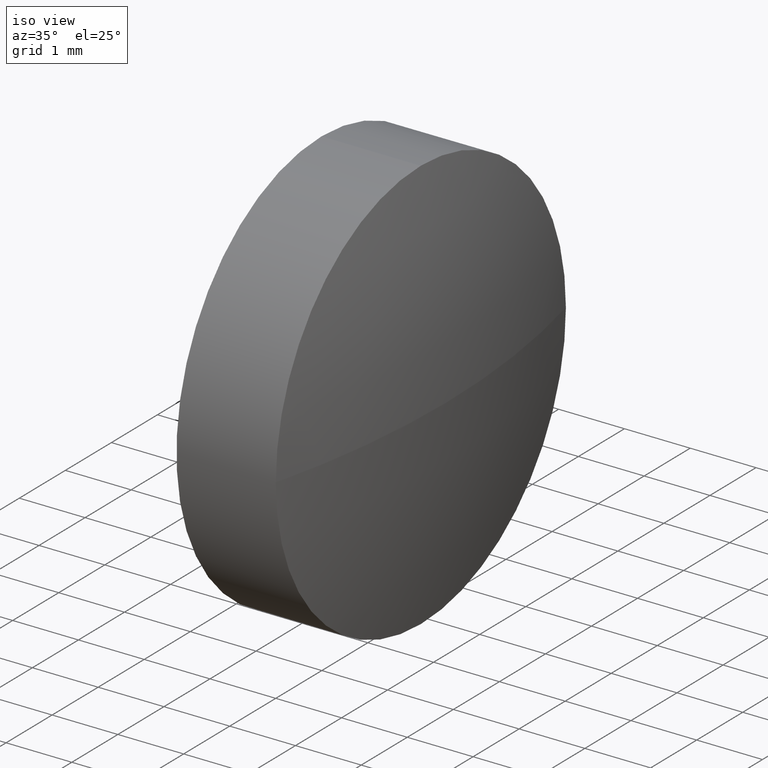
[diagram: clean part render]
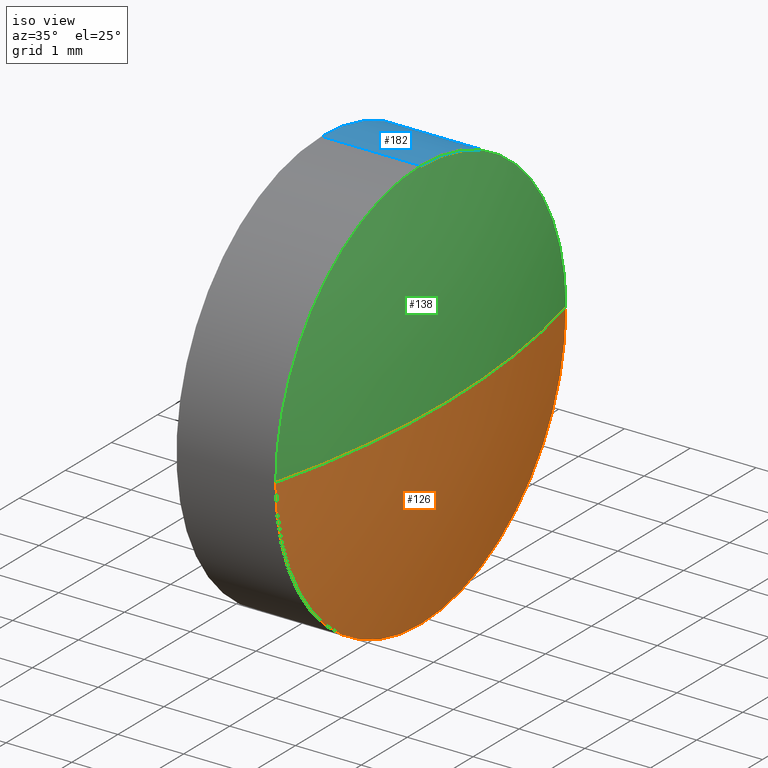
[diagram: same view with three faces highlighted in distinct colors, each labeled with its STEP entity id]
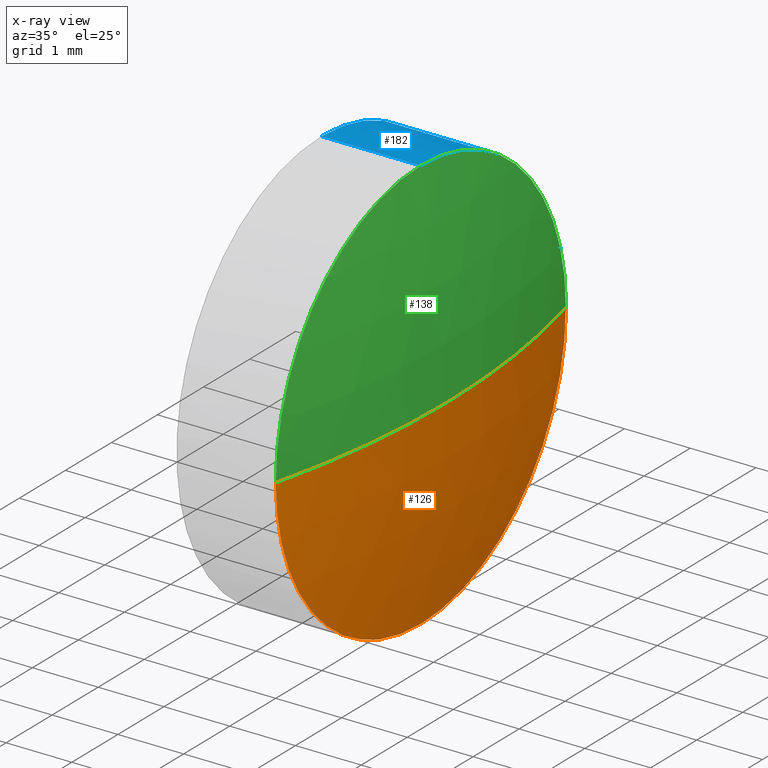
[diagram: x-ray of the same camera — body ghosted, the three highlighted faces saturated]
A machine part, iso view with three faces highlighted in distinct colors.
The next image is the same camera in x-ray (body ghosted, the three faces saturated) — at least one of them is partly hidden behind the body in this view.
Their STEP definitions:

[orange] entity #126 — the highlighted spherical surface has radius 12.9162 mm.
#1 = DIRECTION ( 'NONE',  ( -0.0000000000000000000, 0.0000000000000000000, 1.000000000000000000 ) ) ;
#4 = VERTEX_POINT ( 'NONE', #153 ) ;
#12 = AXIS2_PLACEMENT_3D ( 'NONE', #45, #122, #75 ) ;
#16 = CARTESIAN_POINT ( 'NONE',  ( 449.3945367775709200, 67.58735190658296700, 0.0000000000000000000 ) ) ;
#27 = DIRECTION ( 'NONE',  ( 0.0000000000000000000, 0.0000000000000000000, 1.000000000000000000 ) ) ;
#36 = CIRCLE ( 'NONE', #63, 3.150000000000013700 ) ;
#38 = ORIENTED_EDGE ( 'NONE', *, *, #47, .F. ) ;
#41 = DIRECTION ( 'NONE',  ( 1.000000000000000000, 0.0000000000000000000, 0.0000000000000000000 ) ) ;
#44 = DIRECTION ( 'NONE',  ( 0.0000000000000000000, 1.000000000000000000, 1.224646799147353700E-016 ) ) ;
#45 = CARTESIAN_POINT ( 'NONE',  ( 436.8683829314171000, 67.58735190658293800, 0.0000000000000000000 ) ) ;
#47 = EDGE_CURVE ( 'NONE', #113, #102, #68, .T. ) ;
#55 = VERTEX_POINT ( 'NONE', #143 ) ;
#63 = AXIS2_PLACEMENT_3D ( 'NONE', #16, #88, #27 ) ;
#68 = CIRCLE ( 'NONE', #127, 12.91615384615379900 ) ;
#75 = DIRECTION ( 'NONE',  ( 0.0000000000000000000, 1.000000000000000000, 0.0000000000000000000 ) ) ;
#76 = EDGE_CURVE ( 'NONE', #102, #55, #36, .T. ) ;
#82 = AXIS2_PLACEMENT_3D ( 'NONE', #110, #176, #44 ) ;
#88 = DIRECTION ( 'NONE',  ( -1.000000000000000000, -0.0000000000000000000, -0.0000000000000000000 ) ) ;
#89 = CARTESIAN_POINT ( 'NONE',  ( 449.3945367775709200, 70.73735190658295800, 0.0000000000000000000 ) ) ;
#100 = SPHERICAL_SURFACE ( 'NONE', #12, 12.91615384615380400 ) ;
#102 = VERTEX_POINT ( 'NONE', #89 ) ;
#104 = ORIENTED_EDGE ( 'NONE', *, *, #109, .F. ) ;
#109 = EDGE_CURVE ( 'NONE', #55, #4, #144, .T. ) ;
#110 = CARTESIAN_POINT ( 'NONE',  ( 436.8683829314171000, 67.58735190658293800, 0.0000000000000000000 ) ) ;
#113 = VERTEX_POINT ( 'NONE', #173 ) ;
#118 = ORIENTED_EDGE ( 'NONE', *, *, #76, .F. ) ;
#121 = DIRECTION ( 'NONE',  ( 0.0000000000000000000, 0.0000000000000000000, 1.000000000000000000 ) ) ;
#122 = DIRECTION ( 'NONE',  ( -0.0000000000000000000, 0.0000000000000000000, -1.000000000000000000 ) ) ;
#126 = ADVANCED_FACE ( 'NONE', ( #140 ), #100, .T. ) ;
#127 = AXIS2_PLACEMENT_3D ( 'NONE', #170, #1, #41 ) ;
#129 = EDGE_CURVE ( 'NONE', #113, #4, #178, .T. ) ;
#140 = FACE_OUTER_BOUND ( 'NONE', #167, .T. ) ;
#141 = AXIS2_PLACEMENT_3D ( 'NONE', #161, #164, #121 ) ;
#143 = CARTESIAN_POINT ( 'NONE',  ( 449.3945367775709200, 67.58735190658296700, -3.150000000000013700 ) ) ;
#144 = CIRCLE ( 'NONE', #141, 3.150000000000013700 ) ;
#151 = ORIENTED_EDGE ( 'NONE', *, *, #129, .T. ) ;
#153 = CARTESIAN_POINT ( 'NONE',  ( 449.3945367775709200, 64.43735190658293300, -3.857637417314168100E-016 ) ) ;
#161 = CARTESIAN_POINT ( 'NONE',  ( 449.3945367775709200, 67.58735190658296700, 0.0000000000000000000 ) ) ;
#164 = DIRECTION ( 'NONE',  ( -1.000000000000000000, -0.0000000000000000000, -0.0000000000000000000 ) ) ;
#167 = EDGE_LOOP ( 'NONE', ( #38, #151, #104, #118 ) ) ;
#170 = CARTESIAN_POINT ( 'NONE',  ( 436.8683829314171000, 67.58735190658293800, 0.0000000000000000000 ) ) ;
#173 = CARTESIAN_POINT ( 'NONE',  ( 449.7845367775709100, 67.58735190658293800, 0.0000000000000000000 ) ) ;
#176 = DIRECTION ( 'NONE',  ( 0.0000000000000000000, 1.224646799147353200E-016, -1.000000000000000000 ) ) ;
#178 = CIRCLE ( 'NONE', #82, 12.91615384615379900 ) ;

[blue] entity #182 — the highlighted cylindrical surface (partial cylindrical patch) has radius 3.15 mm, axis along (-1, -0, -0).
#3 = FACE_OUTER_BOUND ( 'NONE', #169, .T. ) ;
#5 = CARTESIAN_POINT ( 'NONE',  ( 447.0229086079864400, 67.58735190658296700, 0.0000000000000000000 ) ) ;
#9 = CARTESIAN_POINT ( 'NONE',  ( 447.8845367775709300, 67.58735190658296700, 0.0000000000000000000 ) ) ;
#11 = ORIENTED_EDGE ( 'NONE', *, *, #154, .T. ) ;
#13 = VERTEX_POINT ( 'NONE', #69 ) ;
#16 = CARTESIAN_POINT ( 'NONE',  ( 449.3945367775709200, 67.58735190658296700, 0.0000000000000000000 ) ) ;
#18 = CARTESIAN_POINT ( 'NONE',  ( 447.0229086079864400, 67.58735190658296700, 3.150000000000013700 ) ) ;
#23 = ORIENTED_EDGE ( 'NONE', *, *, #101, .F. ) ;
#24 = EDGE_CURVE ( 'NONE', #55, #95, #83, .T. ) ;
#27 = DIRECTION ( 'NONE',  ( 0.0000000000000000000, 0.0000000000000000000, 1.000000000000000000 ) ) ;
#30 = AXIS2_PLACEMENT_3D ( 'NONE', #5, #145, #91 ) ;
#31 = DIRECTION ( 'NONE',  ( -1.000000000000000000, -0.0000000000000000000, -0.0000000000000000000 ) ) ;
#32 = LINE ( 'NONE', #18, #111 ) ;
#36 = CIRCLE ( 'NONE', #63, 3.150000000000013700 ) ;
#37 = CIRCLE ( 'NONE', #85, 3.150000000000013700 ) ;
#43 = DIRECTION ( 'NONE',  ( -1.000000000000000000, -0.0000000000000000000, -0.0000000000000000000 ) ) ;
#55 = VERTEX_POINT ( 'NONE', #143 ) ;
#57 = DIRECTION ( 'NONE',  ( 0.0000000000000000000, 0.0000000000000000000, 1.000000000000000000 ) ) ;
#63 = AXIS2_PLACEMENT_3D ( 'NONE', #16, #88, #27 ) ;
#65 = ORIENTED_EDGE ( 'NONE', *, *, #76, .T. ) ;
#69 = CARTESIAN_POINT ( 'NONE',  ( 449.3945367775709200, 67.58735190658296700, 3.150000000000013700 ) ) ;
#70 = CYLINDRICAL_SURFACE ( 'NONE', #30, 3.150000000000013700 ) ;
#76 = EDGE_CURVE ( 'NONE', #102, #55, #36, .T. ) ;
#80 = ORIENTED_EDGE ( 'NONE', *, *, #117, .F. ) ;
#83 = LINE ( 'NONE', #120, #105 ) ;
#85 = AXIS2_PLACEMENT_3D ( 'NONE', #162, #31, #134 ) ;
#88 = DIRECTION ( 'NONE',  ( -1.000000000000000000, -0.0000000000000000000, -0.0000000000000000000 ) ) ;
#89 = CARTESIAN_POINT ( 'NONE',  ( 449.3945367775709200, 70.73735190658295800, 0.0000000000000000000 ) ) ;
#90 = DIRECTION ( 'NONE',  ( -1.000000000000000000, -0.0000000000000000000, -0.0000000000000000000 ) ) ;
#91 = DIRECTION ( 'NONE',  ( 0.0000000000000000000, 0.0000000000000000000, 1.000000000000000000 ) ) ;
#95 = VERTEX_POINT ( 'NONE', #172 ) ;
#101 = EDGE_CURVE ( 'NONE', #130, #95, #128, .T. ) ;
#102 = VERTEX_POINT ( 'NONE', #89 ) ;
#105 = VECTOR ( 'NONE', #142, 1000.000000000000000 ) ;
#111 = VECTOR ( 'NONE', #43, 1000.000000000000000 ) ;
#117 = EDGE_CURVE ( 'NONE', #13, #130, #32, .T. ) ;
#120 = CARTESIAN_POINT ( 'NONE',  ( 447.0229086079864400, 67.58735190658296700, -3.150000000000013700 ) ) ;
#128 = CIRCLE ( 'NONE', #133, 3.150000000000013700 ) ;
#130 = VERTEX_POINT ( 'NONE', #137 ) ;
#133 = AXIS2_PLACEMENT_3D ( 'NONE', #9, #90, #57 ) ;
#134 = DIRECTION ( 'NONE',  ( 0.0000000000000000000, 0.0000000000000000000, 1.000000000000000000 ) ) ;
#136 = ORIENTED_EDGE ( 'NONE', *, *, #24, .T. ) ;
#137 = CARTESIAN_POINT ( 'NONE',  ( 447.8845367775709300, 67.58735190658296700, 3.150000000000013700 ) ) ;
#142 = DIRECTION ( 'NONE',  ( -1.000000000000000000, -0.0000000000000000000, -0.0000000000000000000 ) ) ;
#143 = CARTESIAN_POINT ( 'NONE',  ( 449.3945367775709200, 67.58735190658296700, -3.150000000000013700 ) ) ;
#145 = DIRECTION ( 'NONE',  ( -1.000000000000000000, -0.0000000000000000000, -0.0000000000000000000 ) ) ;
#154 = EDGE_CURVE ( 'NONE', #13, #102, #37, .T. ) ;
#162 = CARTESIAN_POINT ( 'NONE',  ( 449.3945367775709200, 67.58735190658296700, 0.0000000000000000000 ) ) ;
#169 = EDGE_LOOP ( 'NONE', ( #65, #136, #23, #80, #11 ) ) ;
#172 = CARTESIAN_POINT ( 'NONE',  ( 447.8845367775709300, 67.58735190658296700, -3.150000000000013700 ) ) ;
#182 = ADVANCED_FACE ( 'NONE', ( #3 ), #70, .T. ) ;

[green] entity #138 — the highlighted spherical surface has radius 12.9162 mm.
#1 = DIRECTION ( 'NONE',  ( -0.0000000000000000000, 0.0000000000000000000, 1.000000000000000000 ) ) ;
#4 = VERTEX_POINT ( 'NONE', #153 ) ;
#13 = VERTEX_POINT ( 'NONE', #69 ) ;
#15 = ORIENTED_EDGE ( 'NONE', *, *, #154, .F. ) ;
#26 = ORIENTED_EDGE ( 'NONE', *, *, #129, .F. ) ;
#31 = DIRECTION ( 'NONE',  ( -1.000000000000000000, -0.0000000000000000000, -0.0000000000000000000 ) ) ;
#33 = ORIENTED_EDGE ( 'NONE', *, *, #35, .F. ) ;
#35 = EDGE_CURVE ( 'NONE', #4, #13, #77, .T. ) ;
#37 = CIRCLE ( 'NONE', #85, 3.150000000000013700 ) ;
#41 = DIRECTION ( 'NONE',  ( 1.000000000000000000, 0.0000000000000000000, 0.0000000000000000000 ) ) ;
#44 = DIRECTION ( 'NONE',  ( 0.0000000000000000000, 1.000000000000000000, 1.224646799147353700E-016 ) ) ;
#47 = EDGE_CURVE ( 'NONE', #113, #102, #68, .T. ) ;
#54 = FACE_OUTER_BOUND ( 'NONE', #87, .T. ) ;
#56 = CARTESIAN_POINT ( 'NONE',  ( 436.8683829314171000, 67.58735190658293800, 0.0000000000000000000 ) ) ;
#68 = CIRCLE ( 'NONE', #127, 12.91615384615379900 ) ;
#69 = CARTESIAN_POINT ( 'NONE',  ( 449.3945367775709200, 67.58735190658296700, 3.150000000000013700 ) ) ;
#74 = DIRECTION ( 'NONE',  ( 0.0000000000000000000, 1.000000000000000000, 0.0000000000000000000 ) ) ;
#77 = CIRCLE ( 'NONE', #103, 3.150000000000013700 ) ;
#82 = AXIS2_PLACEMENT_3D ( 'NONE', #110, #176, #44 ) ;
#85 = AXIS2_PLACEMENT_3D ( 'NONE', #162, #31, #134 ) ;
#87 = EDGE_LOOP ( 'NONE', ( #26, #175, #15, #33 ) ) ;
#89 = CARTESIAN_POINT ( 'NONE',  ( 449.3945367775709200, 70.73735190658295800, 0.0000000000000000000 ) ) ;
#102 = VERTEX_POINT ( 'NONE', #89 ) ;
#103 = AXIS2_PLACEMENT_3D ( 'NONE', #186, #159, #156 ) ;
#110 = CARTESIAN_POINT ( 'NONE',  ( 436.8683829314171000, 67.58735190658293800, 0.0000000000000000000 ) ) ;
#112 = AXIS2_PLACEMENT_3D ( 'NONE', #56, #124, #74 ) ;
#113 = VERTEX_POINT ( 'NONE', #173 ) ;
#124 = DIRECTION ( 'NONE',  ( -0.0000000000000000000, 0.0000000000000000000, -1.000000000000000000 ) ) ;
#127 = AXIS2_PLACEMENT_3D ( 'NONE', #170, #1, #41 ) ;
#129 = EDGE_CURVE ( 'NONE', #113, #4, #178, .T. ) ;
#134 = DIRECTION ( 'NONE',  ( 0.0000000000000000000, 0.0000000000000000000, 1.000000000000000000 ) ) ;
#138 = ADVANCED_FACE ( 'NONE', ( #54 ), #163, .T. ) ;
#153 = CARTESIAN_POINT ( 'NONE',  ( 449.3945367775709200, 64.43735190658293300, -3.857637417314168100E-016 ) ) ;
#154 = EDGE_CURVE ( 'NONE', #13, #102, #37, .T. ) ;
#156 = DIRECTION ( 'NONE',  ( 0.0000000000000000000, 0.0000000000000000000, 1.000000000000000000 ) ) ;
#159 = DIRECTION ( 'NONE',  ( -1.000000000000000000, -0.0000000000000000000, -0.0000000000000000000 ) ) ;
#162 = CARTESIAN_POINT ( 'NONE',  ( 449.3945367775709200, 67.58735190658296700, 0.0000000000000000000 ) ) ;
#163 = SPHERICAL_SURFACE ( 'NONE', #112, 12.91615384615380400 ) ;
#170 = CARTESIAN_POINT ( 'NONE',  ( 436.8683829314171000, 67.58735190658293800, 0.0000000000000000000 ) ) ;
#173 = CARTESIAN_POINT ( 'NONE',  ( 449.7845367775709100, 67.58735190658293800, 0.0000000000000000000 ) ) ;
#175 = ORIENTED_EDGE ( 'NONE', *, *, #47, .T. ) ;
#176 = DIRECTION ( 'NONE',  ( 0.0000000000000000000, 1.224646799147353200E-016, -1.000000000000000000 ) ) ;
#178 = CIRCLE ( 'NONE', #82, 12.91615384615379900 ) ;
#186 = CARTESIAN_POINT ( 'NONE',  ( 449.3945367775709200, 67.58735190658296700, 0.0000000000000000000 ) ) ;